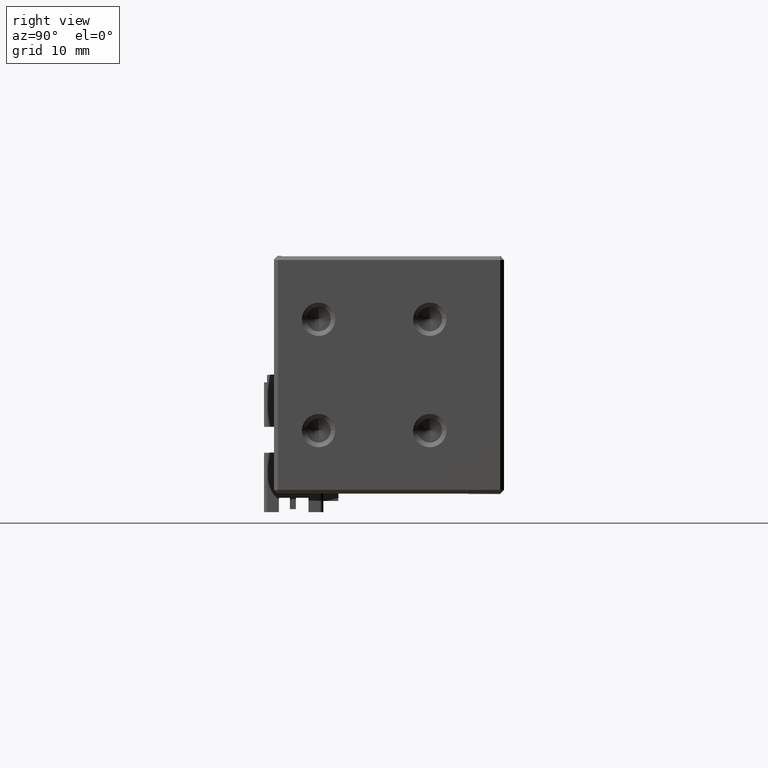
[diagram: clean part render]
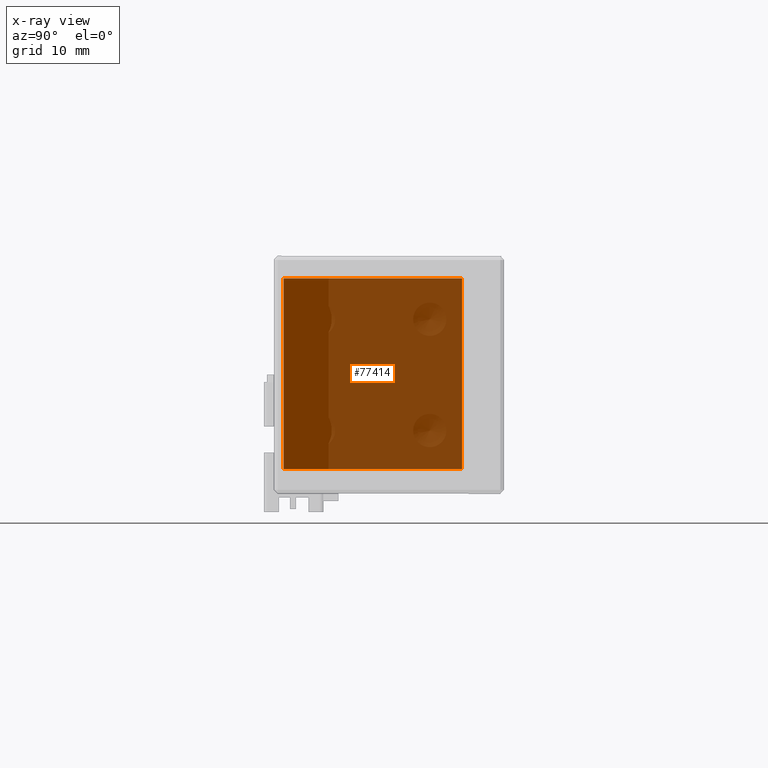
[diagram: x-ray — body ghosted, one internal face saturated and labeled with its STEP entity id]
A machine part, right view, then the same camera in x-ray: the body is ghosted and one INTERNAL B-rep face — a face not visible from any outside direction — is saturated and labeled: STEP entity #77414.
In plain terms, the highlighted planar face has unit normal (-0.7071, -0.7071, -0).
Its self-contained STEP definition (entity closure, byte-faithful):
#3540 = DIRECTION ( 'NONE',  ( 0.7071067811865468000, -0.7071067811865483500, 2.207992201570555800E-016 ) ) ;
#4560 = CARTESIAN_POINT ( 'NONE',  ( -6.968956632780291600, -29.70000000000010900, 22.06069164156515300 ) ) ;
#5489 = CARTESIAN_POINT ( 'NONE',  ( -6.968956632780291600, -29.70000000000010900, 22.06069164156515300 ) ) ;
#5999 = DIRECTION ( 'NONE',  ( -2.369530404383115600E-016, 7.530421126919944900E-017, 1.000000000000000000 ) ) ;
#6515 = ORIENTED_EDGE ( 'NONE', *, *, #12005, .T. ) ;
#9404 = EDGE_CURVE ( 'NONE', #17405, #55392, #76922, .T. ) ;
#12005 = EDGE_CURVE ( 'NONE', #12360, #63005, #36614, .T. ) ;
#12360 = VERTEX_POINT ( 'NONE', #58531 ) ;
#13769 = ORIENTED_EDGE ( 'NONE', *, *, #53692, .T. ) ;
#14238 = CARTESIAN_POINT ( 'NONE',  ( -31.01058719312289100, -5.658369439657459300, 47.76069164156514500 ) ) ;
#15325 = CARTESIAN_POINT ( 'NONE',  ( -6.968956632780298800, -29.70000000000010600, 47.76069164156516000 ) ) ;
#17405 = VERTEX_POINT ( 'NONE', #21324 ) ;
#19298 = DIRECTION ( 'NONE',  ( -2.369530404383115600E-016, 7.530421126919944900E-017, 1.000000000000000000 ) ) ;
#21324 = CARTESIAN_POINT ( 'NONE',  ( -31.01058719312288400, -5.658369439657462900, 22.06069164156514600 ) ) ;
#23540 = LINE ( 'NONE', #4560, #70305 ) ;
#33420 = LINE ( 'NONE', #15325, #49638 ) ;
#34696 = VECTOR ( 'NONE', #66582, 1000.000000000000000 ) ;
#36614 = LINE ( 'NONE', #42352, #34696 ) ;
#37725 = EDGE_CURVE ( 'NONE', #63005, #17405, #23540, .T. ) ;
#38803 = VECTOR ( 'NONE', #19298, 1000.000000000000000 ) ;
#38847 = FACE_OUTER_BOUND ( 'NONE', #70329, .T. ) ;
#42352 = CARTESIAN_POINT ( 'NONE',  ( -6.968956632780291600, -29.70000000000010900, 22.06069164156515300 ) ) ;
#42583 = DIRECTION ( 'NONE',  ( -0.7071067811865483500, -0.7071067811865468000, -1.143029832763452200E-016 ) ) ;
#47316 = DIRECTION ( 'NONE',  ( -0.7071067811865468000, 0.7071067811865483500, -2.207992201570555800E-016 ) ) ;
#49097 = AXIS2_PLACEMENT_3D ( 'NONE', #79080, #42583, #5999 ) ;
#49638 = VECTOR ( 'NONE', #3540, 1000.000000000000000 ) ;
#53692 = EDGE_CURVE ( 'NONE', #55392, #12360, #33420, .T. ) ;
#55392 = VERTEX_POINT ( 'NONE', #14238 ) ;
#55889 = CARTESIAN_POINT ( 'NONE',  ( -31.01058719312288400, -5.658369439657462900, 22.06069164156514600 ) ) ;
#58531 = CARTESIAN_POINT ( 'NONE',  ( -6.968956632780298800, -29.70000000000010600, 47.76069164156516000 ) ) ;
#59909 = PLANE ( 'NONE',  #49097 ) ;
#63005 = VERTEX_POINT ( 'NONE', #5489 ) ;
#66582 = DIRECTION ( 'NONE',  ( 2.369530404383115600E-016, -7.530421126919944900E-017, -1.000000000000000000 ) ) ;
#67757 = ORIENTED_EDGE ( 'NONE', *, *, #37725, .T. ) ;
#70305 = VECTOR ( 'NONE', #47316, 1000.000000000000000 ) ;
#70329 = EDGE_LOOP ( 'NONE', ( #67757, #74547, #13769, #6515 ) ) ;
#74547 = ORIENTED_EDGE ( 'NONE', *, *, #9404, .T. ) ;
#76922 = LINE ( 'NONE', #55889, #38803 ) ;
#77414 = ADVANCED_FACE ( 'NONE', ( #38847 ), #59909, .F. ) ;
#79080 = CARTESIAN_POINT ( 'NONE',  ( -6.968956632780298800, -29.70000000000010600, 47.76069164156516000 ) ) ;